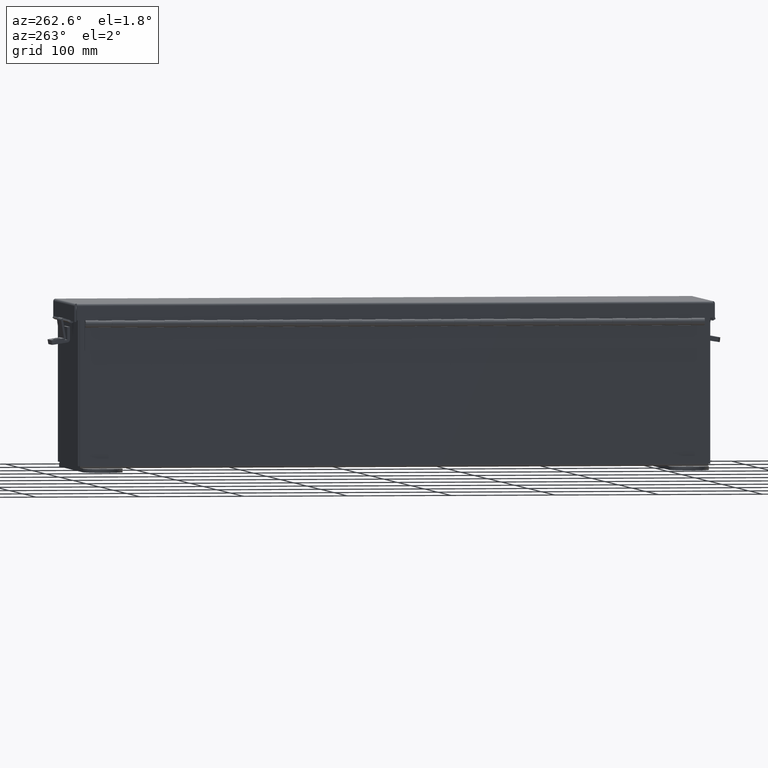
[diagram: clean part render]
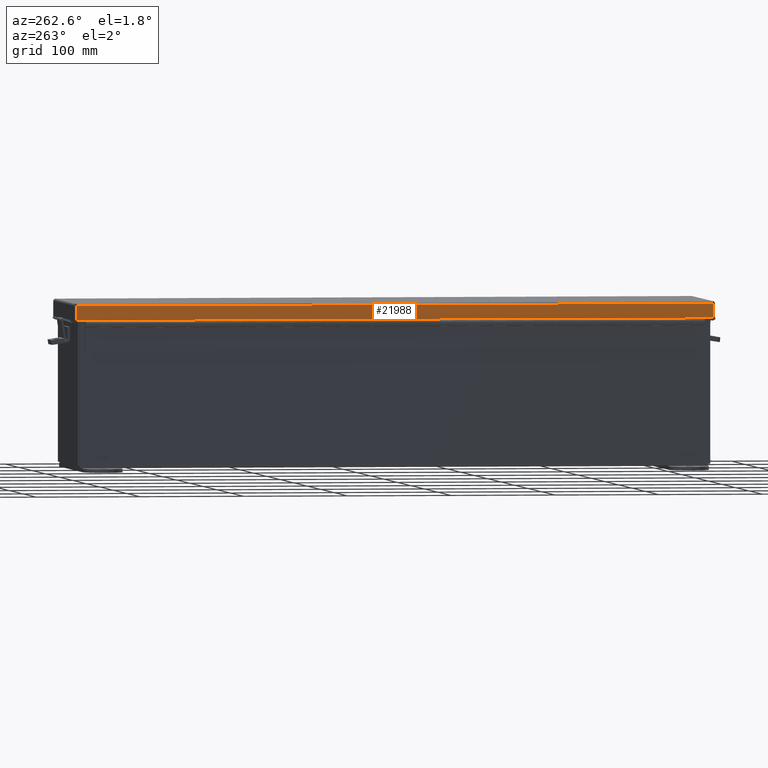
[diagram: same view with one face highlighted and labeled with its STEP entity id]
A machine part, auxiliary view. The second image highlights one B-rep face of the part: STEP entity #21988.
In plain terms, the highlighted planar face has unit normal (1, -0, -0).
Its self-contained STEP definition (entity closure, byte-faithful):
#354 = VECTOR ( 'NONE', #18364, 39.37007874015748100 ) ;
#1106 = ORIENTED_EDGE ( 'NONE', *, *, #20531, .F. ) ;
#1646 = VERTEX_POINT ( 'NONE', #7823 ) ;
#1872 = CARTESIAN_POINT ( 'NONE',  ( 3.156250000000013800, 12.07447893218811300, 0.5502999999999999000 ) ) ;
#2134 = VECTOR ( 'NONE', #14340, 39.37007874015748100 ) ;
#2441 = VERTEX_POINT ( 'NONE', #1872 ) ;
#4286 = PLANE ( 'NONE',  #4471 ) ;
#4471 = AXIS2_PLACEMENT_3D ( 'NONE', #9522, #6050, #18363 ) ;
#4983 = LINE ( 'NONE', #11313, #354 ) ;
#5133 = EDGE_LOOP ( 'NONE', ( #1106, #15726, #14583, #13251 ) ) ;
#6050 = DIRECTION ( 'NONE',  ( -1.000000000000000000, -5.765782022948421900E-030, 3.971430846686188400E-015 ) ) ;
#7190 = DIRECTION ( 'NONE',  ( 3.971430846686188400E-015, 2.100342160150935500E-029, 1.000000000000000000 ) ) ;
#7823 = CARTESIAN_POINT ( 'NONE',  ( 3.156250000000011500, -12.07447893218815500, 0.01300000000000010700 ) ) ;
#8161 = VECTOR ( 'NONE', #7190, 39.37007874015748100 ) ;
#8924 = VERTEX_POINT ( 'NONE', #9139 ) ;
#9139 = CARTESIAN_POINT ( 'NONE',  ( 3.156250000000013800, -12.07447893218815500, 0.5502999999999999000 ) ) ;
#9522 = CARTESIAN_POINT ( 'NONE',  ( 3.156250000000011500, -3.201384367575308500E-018, -1.311287036958846300E-014 ) ) ;
#10795 = CARTESIAN_POINT ( 'NONE',  ( 3.156250000000013800, -3.201384367575308500E-018, 0.5502999999999999000 ) ) ;
#11313 = CARTESIAN_POINT ( 'NONE',  ( 3.156250000000011500, 12.07447893218811300, -1.311287036958846300E-014 ) ) ;
#11333 = EDGE_CURVE ( 'NONE', #2441, #8924, #15602, .T. ) ;
#11448 = EDGE_CURVE ( 'NONE', #1646, #8924, #12853, .T. ) ;
#12853 = LINE ( 'NONE', #19416, #8161 ) ;
#13251 = ORIENTED_EDGE ( 'NONE', *, *, #11448, .F. ) ;
#14340 = DIRECTION ( 'NONE',  ( -5.766883393365969200E-030, -1.000000000000000000, -2.085551018178049700E-029 ) ) ;
#14583 = ORIENTED_EDGE ( 'NONE', *, *, #11333, .T. ) ;
#15602 = LINE ( 'NONE', #10795, #2134 ) ;
#15726 = ORIENTED_EDGE ( 'NONE', *, *, #18221, .T. ) ;
#16213 = LINE ( 'NONE', #18577, #20342 ) ;
#16805 = DIRECTION ( 'NONE',  ( -5.853379124192384500E-030, -1.000000000000000000, -2.247278555201480100E-017 ) ) ;
#18221 = EDGE_CURVE ( 'NONE', #19881, #2441, #4983, .T. ) ;
#18363 = DIRECTION ( 'NONE',  ( 3.971430846686188400E-015, 2.100342160150935500E-029, 1.000000000000000000 ) ) ;
#18364 = DIRECTION ( 'NONE',  ( 3.971430846686188400E-015, 2.100342160150935500E-029, 1.000000000000000000 ) ) ;
#18577 = CARTESIAN_POINT ( 'NONE',  ( 3.156250000000011500, -12.15625000000002100, 0.01299999999999901400 ) ) ;
#19416 = CARTESIAN_POINT ( 'NONE',  ( 3.156250000000011500, -12.07447893218815500, -1.092739197465705300E-015 ) ) ;
#19881 = VERTEX_POINT ( 'NONE', #21999 ) ;
#20342 = VECTOR ( 'NONE', #16805, 39.37007874015748100 ) ;
#20531 = EDGE_CURVE ( 'NONE', #19881, #1646, #16213, .T. ) ;
#20830 = FACE_OUTER_BOUND ( 'NONE', #5133, .T. ) ;
#21988 = ADVANCED_FACE ( 'NONE', ( #20830 ), #4286, .F. ) ;
#21999 = CARTESIAN_POINT ( 'NONE',  ( 3.156250000000011500, 12.07447893218811300, 0.01300000000000010700 ) ) ;